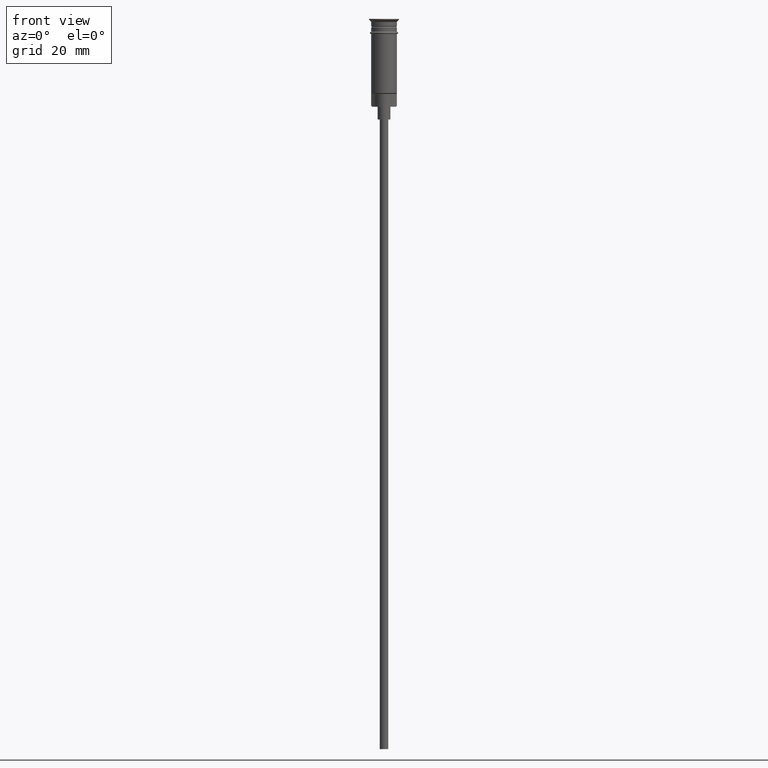
[diagram: clean part render]
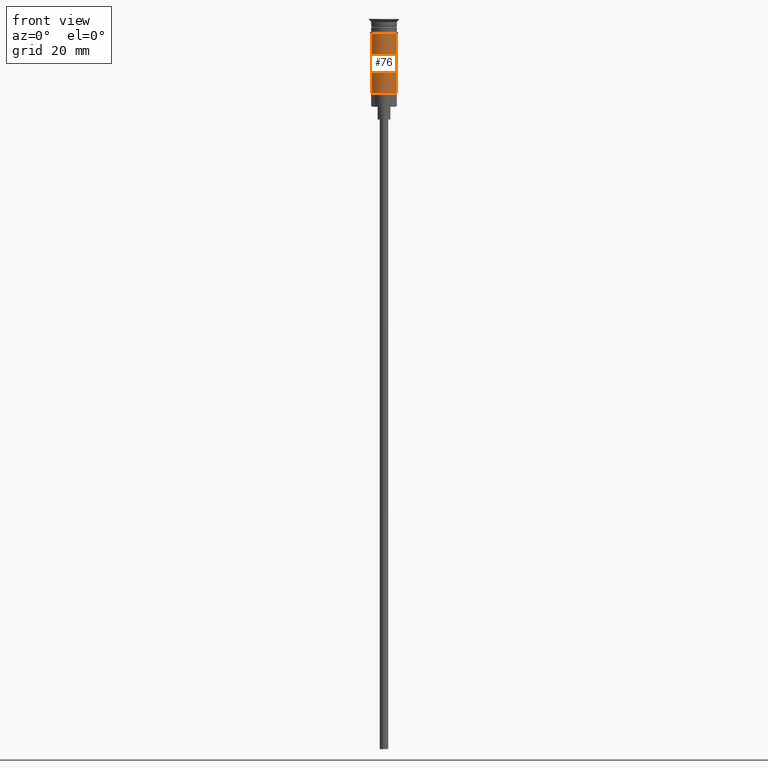
[diagram: same view with one face highlighted and labeled with its STEP entity id]
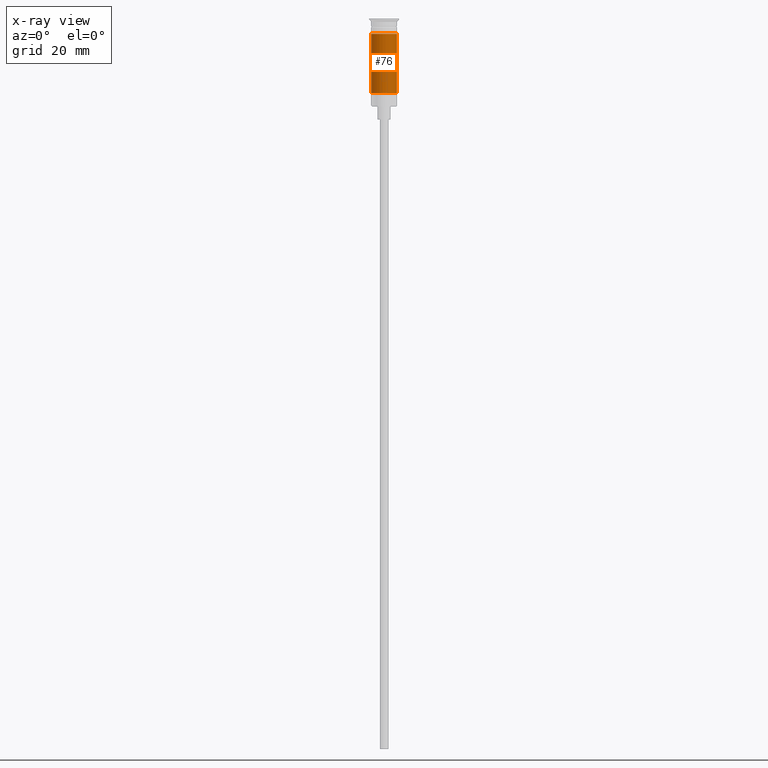
[diagram: x-ray of the same camera — body ghosted, the highlighted face saturated]
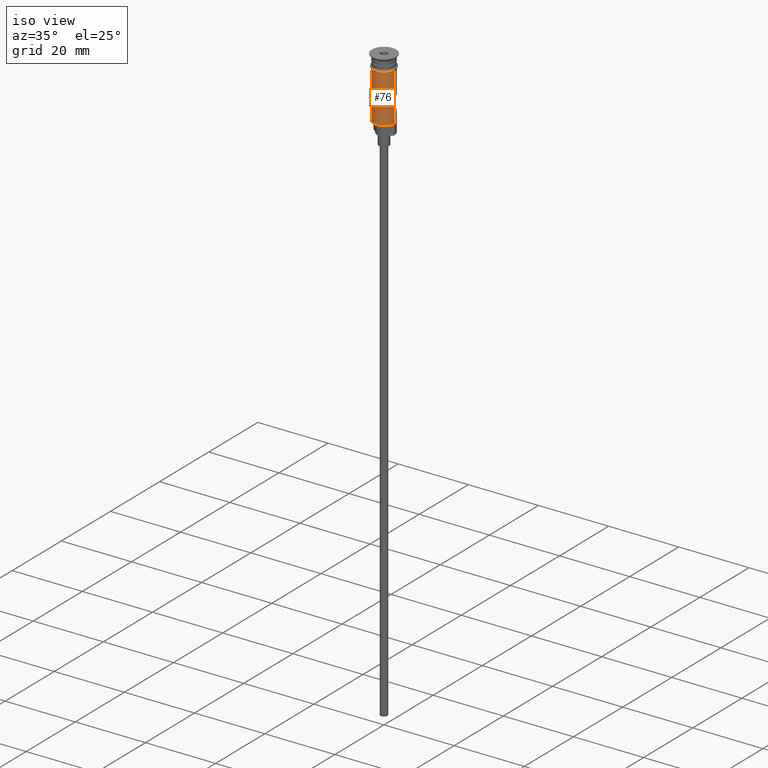
[diagram: same view with one face highlighted and labeled with its STEP entity id]
A machine part, front view. The second image highlights one B-rep face of the part: STEP entity #76.
The next image is the same camera in x-ray: the body ghosted, the highlighted face saturated — about 0% of this face is hidden behind the body in this view.
A second angle (iso view) of the same face is appended — the face is thin or edge-on in the first view.
In plain terms, the highlighted cylindrical surface (edge-blend (fillet) strip) has radius 3 mm, axis along (-0, -0, 1).
Its self-contained STEP definition (entity closure, byte-faithful):
#12 = EDGE_CURVE ( 'NONE', #518, #327, #971, .T. ) ;
#33 = DIRECTION ( 'NONE',  ( -1.000000000000000000, 0.000000000000000000, 0.000000000000000000 ) ) ;
#42 = CARTESIAN_POINT ( 'NONE',  ( 2.999999999999996891, 3.673940397442055924E-16, -17.30000000000000782 ) ) ;
#53 = ORIENTED_EDGE ( 'NONE', *, *, #12, .T. ) ;
#76 = ADVANCED_FACE ( 'NONE', ( #227 ), #596, .T. ) ;
#106 = AXIS2_PLACEMENT_3D ( 'NONE', #1344, #473, #979 ) ;
#107 = EDGE_CURVE ( 'NONE', #327, #1331, #821, .T. ) ;
#157 = VERTEX_POINT ( 'NONE', #850 ) ;
#160 = EDGE_CURVE ( 'NONE', #157, #1331, #190, .T. ) ;
#190 = CIRCLE ( 'NONE', #106, 2.999999999999998668 ) ;
#199 = CARTESIAN_POINT ( 'NONE',  ( 0.000000000000000000, 0.000000000000000000, 0.000000000000000000 ) ) ;
#227 = FACE_OUTER_BOUND ( 'NONE', #482, .T. ) ;
#239 = CARTESIAN_POINT ( 'NONE',  ( 2.999999999999996891, 0.000000000000000000, 0.000000000000000000 ) ) ;
#292 = CARTESIAN_POINT ( 'NONE',  ( 0.000000000000000000, 0.000000000000000000, -17.30000000000000782 ) ) ;
#327 = VERTEX_POINT ( 'NONE', #42 ) ;
#358 = DIRECTION ( 'NONE',  ( -0.000000000000000000, -0.000000000000000000, 1.000000000000000000 ) ) ;
#371 = ORIENTED_EDGE ( 'NONE', *, *, #107, .T. ) ;
#473 = DIRECTION ( 'NONE',  ( -0.000000000000000000, -0.000000000000000000, 1.000000000000000000 ) ) ;
#482 = EDGE_LOOP ( 'NONE', ( #882, #53, #371, #1376 ) ) ;
#518 = VERTEX_POINT ( 'NONE', #1108 ) ;
#586 = VECTOR ( 'NONE', #1119, 1000.000000000000000 ) ;
#596 = CYLINDRICAL_SURFACE ( 'NONE', #756, 2.999999999999996891 ) ;
#649 = DIRECTION ( 'NONE',  ( -0.000000000000000000, -0.000000000000000000, 1.000000000000000000 ) ) ;
#656 = AXIS2_PLACEMENT_3D ( 'NONE', #292, #649, #33 ) ;
#728 = VECTOR ( 'NONE', #1458, 1000.000000000000000 ) ;
#756 = AXIS2_PLACEMENT_3D ( 'NONE', #199, #358, #855 ) ;
#821 = LINE ( 'NONE', #239, #728 ) ;
#850 = CARTESIAN_POINT ( 'NONE',  ( -2.999999999999999112, 3.673940397442058389E-16, -3.499999999999998668 ) ) ;
#855 = DIRECTION ( 'NONE',  ( 1.000000000000000000, 0.000000000000000000, 0.000000000000000000 ) ) ;
#882 = ORIENTED_EDGE ( 'NONE', *, *, #1494, .F. ) ;
#971 = CIRCLE ( 'NONE', #656, 2.999999999999996891 ) ;
#979 = DIRECTION ( 'NONE',  ( 1.000000000000000000, 0.000000000000000000, 0.000000000000000000 ) ) ;
#983 = CARTESIAN_POINT ( 'NONE',  ( 2.999999999999998668, 0.000000000000000000, -3.499999999999998668 ) ) ;
#993 = LINE ( 'NONE', #1496, #586 ) ;
#1108 = CARTESIAN_POINT ( 'NONE',  ( -2.999999999999995115, 0.000000000000000000, -17.30000000000000782 ) ) ;
#1119 = DIRECTION ( 'NONE',  ( -0.000000000000000000, -0.000000000000000000, 1.000000000000000000 ) ) ;
#1331 = VERTEX_POINT ( 'NONE', #983 ) ;
#1344 = CARTESIAN_POINT ( 'NONE',  ( 0.000000000000000000, 0.000000000000000000, -3.499999999999998668 ) ) ;
#1376 = ORIENTED_EDGE ( 'NONE', *, *, #160, .F. ) ;
#1458 = DIRECTION ( 'NONE',  ( -0.000000000000000000, -0.000000000000000000, 1.000000000000000000 ) ) ;
#1494 = EDGE_CURVE ( 'NONE', #518, #157, #993, .T. ) ;
#1496 = CARTESIAN_POINT ( 'NONE',  ( -2.999999999999996891, 3.673940397442055924E-16, 0.000000000000000000 ) ) ;